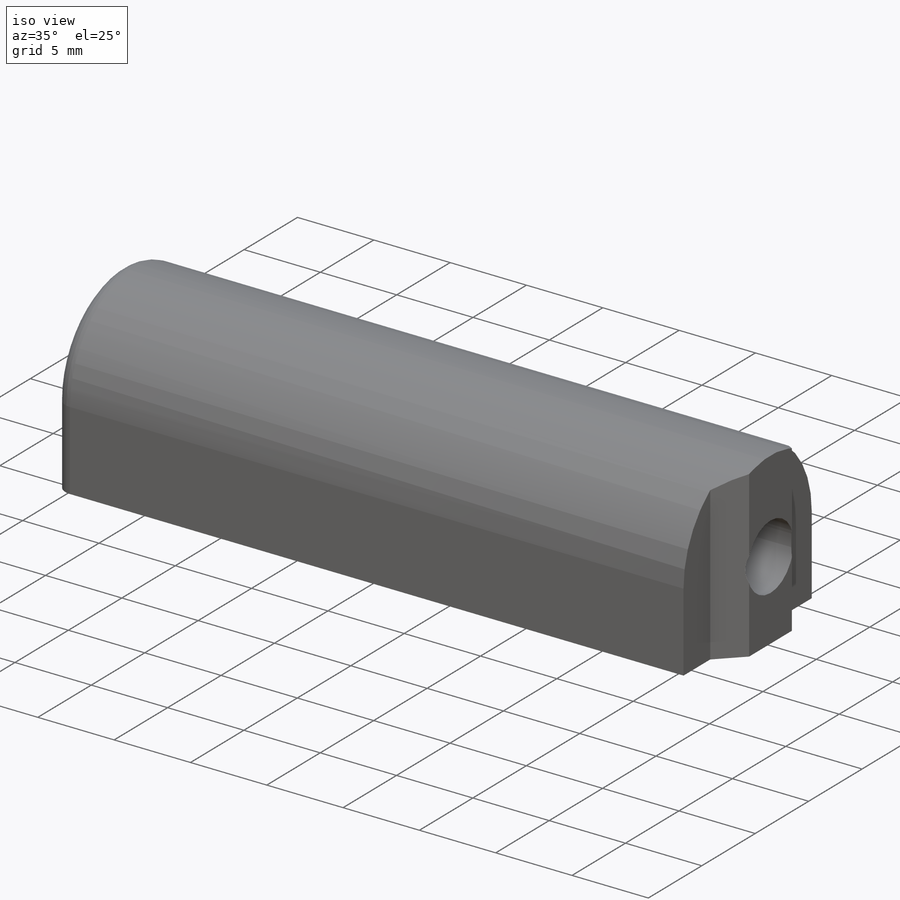
[diagram: iso view]
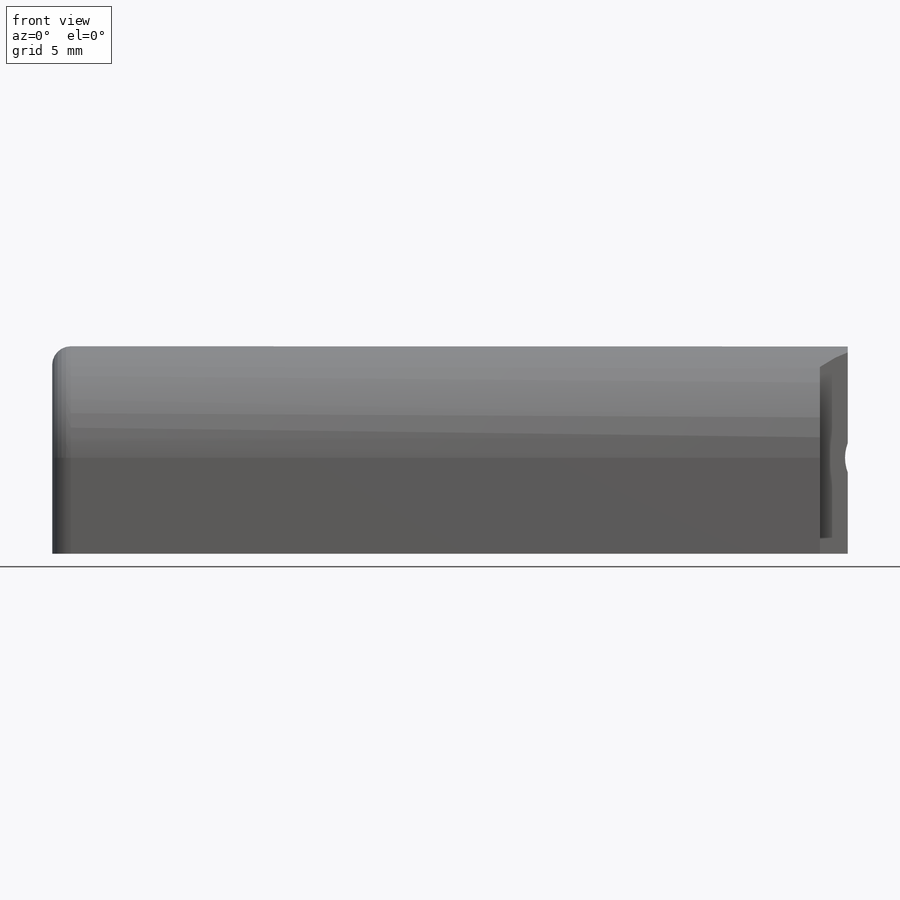
[diagram: front view]
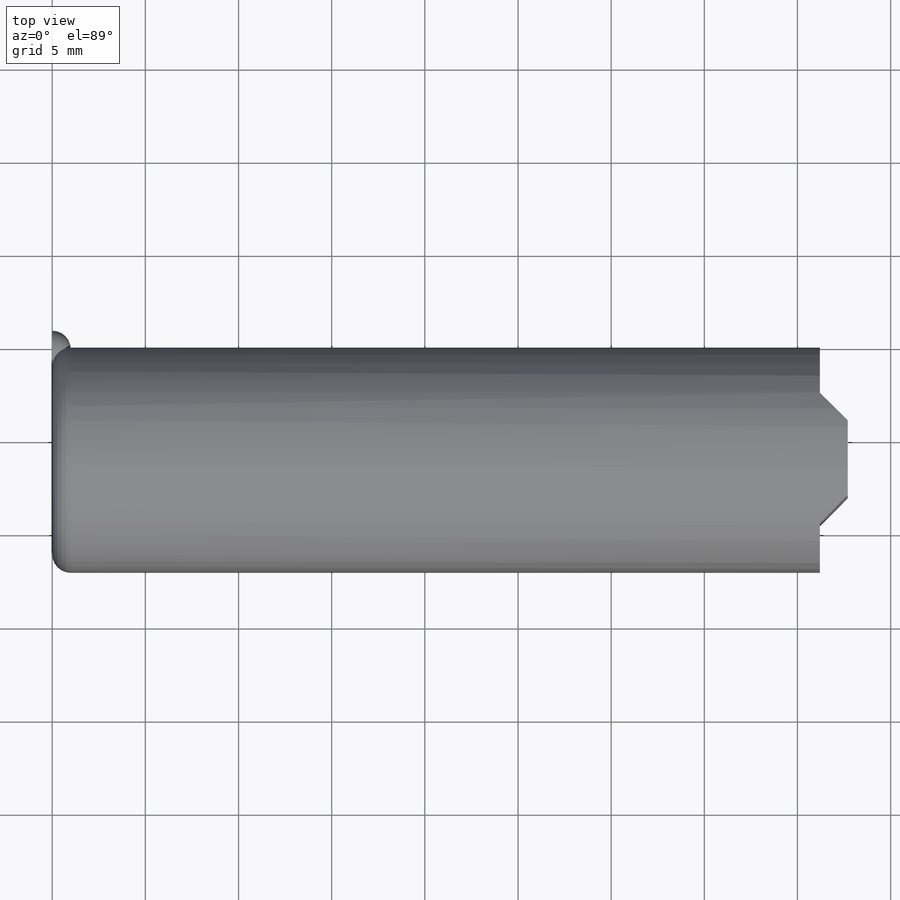
[diagram: top view]
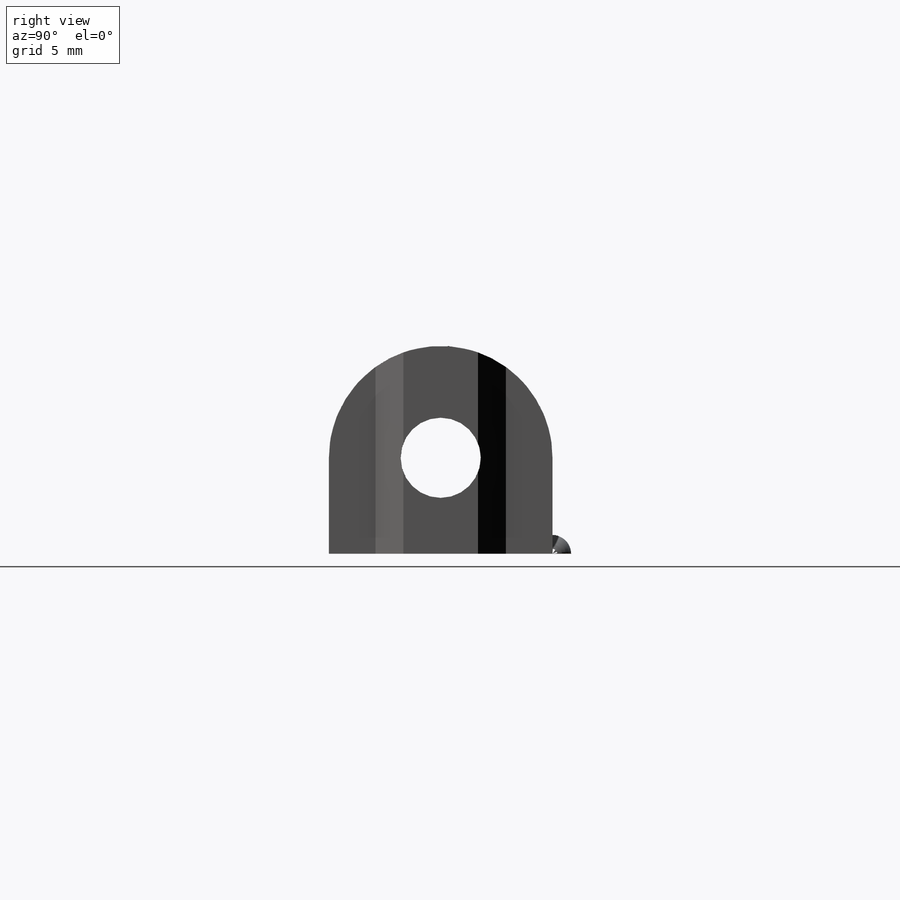
[diagram: right view]
SOLIDWORKS PART (.sldprt)
format: sldprt  version: not decoded by parser v0  size: 219,136 bytes
history: native  units: mm
features: sketch x3, extrude x2, material x1, cut_extrude x1, fillet x1 (+13 scaffold rows collapsed)
feature tree (21):
  scaffold x13  (default folders/planes/origin — collapsed)
  material  "Custom Plastic"
  sketch  "Sketch1"  dims[c1.D1=30.0mm c1.D2=10.0mm c1.D3=5.2mm c1.D4=4.0mm c1.D5=13.0mm c2.D1=41.2mm]
  extrude  "Boss-Extrude1"  Depth=12mm
  sketch  "Sketch3"  dims[D1=7.0mm D2=4.0mm D3=1.5mm]
  extrude  "Boss-Extrude3"  [1 undecoded]
  sketch  "Sketch2"  dims[D2=4.3mm D1=5.0mm D3=4.9mm]
  cut_extrude  "Cut-Extrude1"  [1 undecoded]
  fillet  "Fillet1"  Radius=1mm
decode coverage: 5 of 7 modeling features carry decoded parameters
note: 2 parameter values undecoded
note: suppression state not decoded; provenance and decode notes live in map.json
